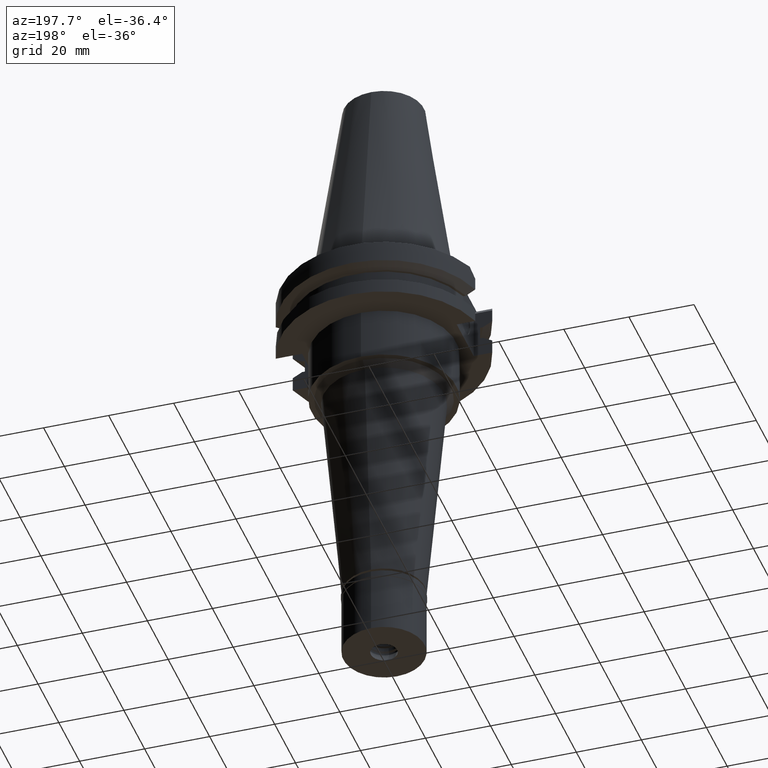
[diagram: clean part render]
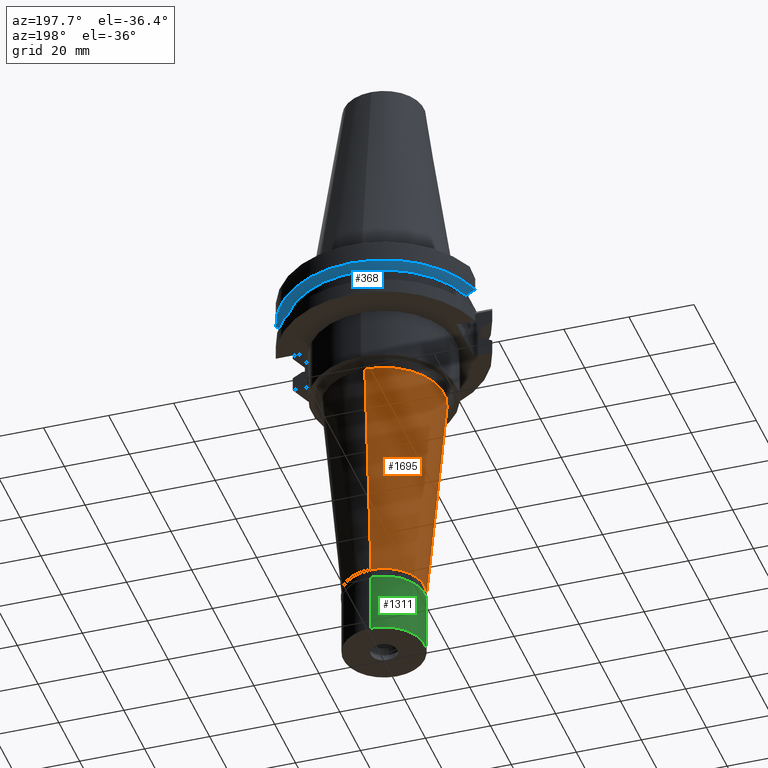
[diagram: same view with three faces highlighted in distinct colors, each labeled with its STEP entity id]
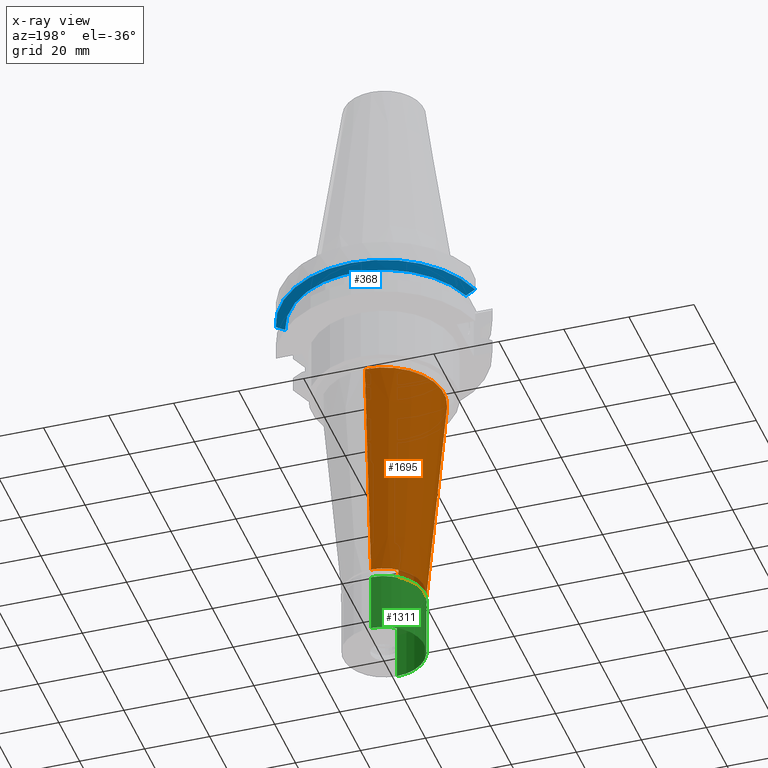
[diagram: x-ray of the same camera — body ghosted, the three highlighted faces saturated]
A machine part, auxiliary view with three faces highlighted in distinct colors.
The next image is the same camera in x-ray (body ghosted, the three faces saturated) — at least one of them is partly hidden behind the body in this view.
Their STEP definitions:

[orange] entity #1695 — the highlighted conical surface has half-angle 5 deg.
#9 = CONICAL_SURFACE ( 'NONE', #2849, 15.50523559212000002, 0.08726646259969973729 ) ;
#115 = DIRECTION ( 'NONE',  ( 0.0000000000000000000, 0.08715574274764407992, -0.9961946980917467664 ) ) ;
#285 = FACE_OUTER_BOUND ( 'NONE', #1817, .T. ) ;
#340 = CARTESIAN_POINT ( 'NONE',  ( 0.0000000000000000000, 18.51047118422999915, -37.00000000000000000 ) ) ;
#359 = ORIENTED_EDGE ( 'NONE', *, *, #1542, .T. ) ;
#388 = CARTESIAN_POINT ( 'NONE',  ( 0.0000000000000000000, -18.51047118422999915, -37.00000000000000000 ) ) ;
#406 = CARTESIAN_POINT ( 'NONE',  ( 0.0000000000000000000, -12.50000000000000000, -105.7000000000000028 ) ) ;
#423 = DIRECTION ( 'NONE',  ( 0.0000000000000000000, 1.000000000000000000, 0.0000000000000000000 ) ) ;
#504 = ORIENTED_EDGE ( 'NONE', *, *, #2035, .T. ) ;
#564 = CARTESIAN_POINT ( 'NONE',  ( 0.0000000000000000000, 0.0000000000000000000, -71.34999999999999432 ) ) ;
#752 = CARTESIAN_POINT ( 'NONE',  ( 0.0000000000000000000, 18.51047118422999915, -37.00000000000000000 ) ) ;
#798 = DIRECTION ( 'NONE',  ( 0.0000000000000000000, 1.000000000000000000, 0.0000000000000000000 ) ) ;
#939 = EDGE_CURVE ( 'NONE', #1962, #1413, #2685, .T. ) ;
#963 = VERTEX_POINT ( 'NONE', #752 ) ;
#999 = DIRECTION ( 'NONE',  ( 0.0000000000000000000, 0.0000000000000000000, -1.000000000000000000 ) ) ;
#1044 = AXIS2_PLACEMENT_3D ( 'NONE', #1997, #1707, #423 ) ;
#1052 = DIRECTION ( 'NONE',  ( 0.0000000000000000000, 0.0000000000000000000, 1.000000000000000000 ) ) ;
#1329 = EDGE_CURVE ( 'NONE', #2793, #1413, #2725, .T. ) ;
#1381 = DIRECTION ( 'NONE',  ( 0.0000000000000000000, -0.08715574274764407992, -0.9961946980917467664 ) ) ;
#1413 = VERTEX_POINT ( 'NONE', #406 ) ;
#1542 = EDGE_CURVE ( 'NONE', #2793, #963, #2513, .T. ) ;
#1695 = ADVANCED_FACE ( 'NONE', ( #285 ), #9, .T. ) ;
#1707 = DIRECTION ( 'NONE',  ( 0.0000000000000000000, 0.0000000000000000000, 1.000000000000000000 ) ) ;
#1817 = EDGE_LOOP ( 'NONE', ( #3050, #2728, #359, #504 ) ) ;
#1898 = LINE ( 'NONE', #340, #2145 ) ;
#1962 = VERTEX_POINT ( 'NONE', #2177 ) ;
#1997 = CARTESIAN_POINT ( 'NONE',  ( 0.0000000000000000000, 0.0000000000000000000, -105.7000000000000028 ) ) ;
#2035 = EDGE_CURVE ( 'NONE', #963, #1962, #1898, .T. ) ;
#2145 = VECTOR ( 'NONE', #1381, 1000.000000000000114 ) ;
#2177 = CARTESIAN_POINT ( 'NONE',  ( 0.0000000000000000000, 12.50000000000000000, -105.7000000000000028 ) ) ;
#2513 = CIRCLE ( 'NONE', #3276, 18.51047118422999915 ) ;
#2628 = VECTOR ( 'NONE', #115, 1000.000000000000114 ) ;
#2685 = CIRCLE ( 'NONE', #1044, 12.50000000000000000 ) ;
#2725 = LINE ( 'NONE', #388, #2628 ) ;
#2728 = ORIENTED_EDGE ( 'NONE', *, *, #1329, .F. ) ;
#2793 = VERTEX_POINT ( 'NONE', #2838 ) ;
#2838 = CARTESIAN_POINT ( 'NONE',  ( 0.0000000000000000000, -18.51047118422999915, -37.00000000000000000 ) ) ;
#2846 = DIRECTION ( 'NONE',  ( 0.0000000000000000000, -1.000000000000000000, 0.0000000000000000000 ) ) ;
#2849 = AXIS2_PLACEMENT_3D ( 'NONE', #564, #1052, #798 ) ;
#3050 = ORIENTED_EDGE ( 'NONE', *, *, #939, .T. ) ;
#3276 = AXIS2_PLACEMENT_3D ( 'NONE', #3335, #999, #2846 ) ;
#3335 = CARTESIAN_POINT ( 'NONE',  ( 0.0000000000000000000, 0.0000000000000000000, -37.00000000000000000 ) ) ;

[blue] entity #368 — the highlighted conical surface has half-angle 60 deg.
#27 = CARTESIAN_POINT ( 'NONE',  ( -27.79398348482000003, 8.190000189175000500, -9.210000000000999165 ) ) ;
#35 = ORIENTED_EDGE ( 'NONE', *, *, #1899, .T. ) ;
#121 = AXIS2_PLACEMENT_3D ( 'NONE', #1637, #1671, #630 ) ;
#263 = DIRECTION ( 'NONE',  ( 0.9661575315241073270, 0.2579527559055020958, 0.0000000000000000000 ) ) ;
#355 = B_SPLINE_CURVE_WITH_KNOTS ( 'NONE', 3,
 ( #2311, #2055, #1303, #1577 ),
 .UNSPECIFIED., .F., .F.,
 ( 4, 4 ),
 ( 0.0000000000000000000, 1.000000000000000000 ),
 .UNSPECIFIED. ) ;
#368 = ADVANCED_FACE ( 'NONE', ( #427 ), #2839, .T. ) ;
#427 = FACE_OUTER_BOUND ( 'NONE', #2065, .T. ) ;
#441 = VERTEX_POINT ( 'NONE', #1546 ) ;
#449 = CIRCLE ( 'NONE', #121, 28.97553755052999946 ) ;
#630 = DIRECTION ( 'NONE',  ( 0.0000000000000000000, 1.000000000000000000, 0.0000000000000000000 ) ) ;
#652 = DIRECTION ( 'NONE',  ( 0.0000000000000000000, 1.000000000000000000, 0.0000000000000000000 ) ) ;
#715 = ORIENTED_EDGE ( 'NONE', *, *, #1666, .F. ) ;
#925 = EDGE_CURVE ( 'NONE', #1745, #1834, #1485, .T. ) ;
#950 = CARTESIAN_POINT ( 'NONE',  ( -27.79398348482000003, 8.190000189175000500, -9.210000000000999165 ) ) ;
#1303 = CARTESIAN_POINT ( 'NONE',  ( 28.71170969509163839, 8.189998730403164728, -8.701758253036681268 ) ) ;
#1370 = AXIS2_PLACEMENT_3D ( 'NONE', #1470, #2734, #652 ) ;
#1470 = CARTESIAN_POINT ( 'NONE',  ( 0.0000000000000000000, 1.121665249527999917E-14, -8.409081678974001051 ) ) ;
#1484 = CIRCLE ( 'NONE', #2574, 31.74999999999998579 ) ;
#1485 = B_SPLINE_CURVE_WITH_KNOTS ( 'NONE', 3,
 ( #950, #2749, #3268, #2763 ),
 .UNSPECIFIED., .F., .F.,
 ( 4, 4 ),
 ( 0.0000000000000000000, 1.000000000000000000 ),
 .UNSPECIFIED. ) ;
#1546 = CARTESIAN_POINT ( 'NONE',  ( 30.67550165918999738, 8.189999875296001264, -7.608164472358999397 ) ) ;
#1577 = CARTESIAN_POINT ( 'NONE',  ( 27.79399588427999745, 8.189999365899998551, -9.210000000000999165 ) ) ;
#1637 = CARTESIAN_POINT ( 'NONE',  ( 0.0000000000000000000, 1.121665249527999917E-14, -9.210000000002999343 ) ) ;
#1666 = EDGE_CURVE ( 'NONE', #441, #1834, #1484, .T. ) ;
#1671 = DIRECTION ( 'NONE',  ( 0.0000000000000000000, 0.0000000000000000000, 1.000000000000000000 ) ) ;
#1720 = ORIENTED_EDGE ( 'NONE', *, *, #925, .T. ) ;
#1745 = VERTEX_POINT ( 'NONE', #27 ) ;
#1834 = VERTEX_POINT ( 'NONE', #2918 ) ;
#1899 = EDGE_CURVE ( 'NONE', #2004, #1745, #449, .T. ) ;
#2004 = VERTEX_POINT ( 'NONE', #2988 ) ;
#2055 = CARTESIAN_POINT ( 'NONE',  ( 29.67220411597960350, 8.189999750685567292, -8.167814094916428402 ) ) ;
#2065 = EDGE_LOOP ( 'NONE', ( #2088, #35, #1720, #715 ) ) ;
#2088 = ORIENTED_EDGE ( 'NONE', *, *, #2855, .T. ) ;
#2311 = CARTESIAN_POINT ( 'NONE',  ( 30.67550165918999738, 8.189999875296001264, -7.608164472358999397 ) ) ;
#2574 = AXIS2_PLACEMENT_3D ( 'NONE', #2607, #2866, #263 ) ;
#2607 = CARTESIAN_POINT ( 'NONE',  ( 0.0000000000000000000, 1.121665249527999917E-14, -7.608163357944999206 ) ) ;
#2734 = DIRECTION ( 'NONE',  ( 0.0000000000000000000, 0.0000000000000000000, 1.000000000000000000 ) ) ;
#2749 = CARTESIAN_POINT ( 'NONE',  ( -28.71170642078588386, 8.190000378777559931, -8.701759819570268562 ) ) ;
#2763 = CARTESIAN_POINT ( 'NONE',  ( -30.67550146538999911, 8.190000601148000214, -7.608157985709000037 ) ) ;
#2839 = CONICAL_SURFACE ( 'NONE', #1370, 30.36276877526999840, 1.047197551196400456 ) ;
#2855 = EDGE_CURVE ( 'NONE', #441, #2004, #355, .T. ) ;
#2866 = DIRECTION ( 'NONE',  ( 0.0000000000000000000, 0.0000000000000000000, 1.000000000000000000 ) ) ;
#2918 = CARTESIAN_POINT ( 'NONE',  ( -30.67550146538999911, 8.190000601148000214, -7.608157985709000037 ) ) ;
#2988 = CARTESIAN_POINT ( 'NONE',  ( 27.79399588427999745, 8.189999365899998551, -9.210000000000999165 ) ) ;
#3268 = CARTESIAN_POINT ( 'NONE',  ( -29.67220490029862034, 8.190001201864017588, -8.167813437756086259 ) ) ;

[green] entity #1311 — the highlighted cylindrical surface (partial cylindrical patch) has radius 12.5 mm, axis along (0, 0, -1).
#15 = AXIS2_PLACEMENT_3D ( 'NONE', #2110, #523, #3110 ) ;
#187 = DIRECTION ( 'NONE',  ( 0.0000000000000000000, 0.0000000000000000000, -1.000000000000000000 ) ) ;
#211 = DIRECTION ( 'NONE',  ( 0.0000000000000000000, 0.0000000000000000000, -1.000000000000000000 ) ) ;
#499 = VERTEX_POINT ( 'NONE', #1510 ) ;
#502 = CARTESIAN_POINT ( 'NONE',  ( 0.0000000000000000000, 12.50000000000000000, -2.000000000000000000 ) ) ;
#523 = DIRECTION ( 'NONE',  ( 0.0000000000000000000, 0.0000000000000000000, 1.000000000000000000 ) ) ;
#617 = CYLINDRICAL_SURFACE ( 'NONE', #1596, 12.50000000000000000 ) ;
#646 = CARTESIAN_POINT ( 'NONE',  ( 0.0000000000000000000, 0.0000000000000000000, 0.0000000000000000000 ) ) ;
#719 = CIRCLE ( 'NONE', #3113, 12.50000000000000000 ) ;
#805 = LINE ( 'NONE', #502, #1277 ) ;
#1098 = EDGE_CURVE ( 'NONE', #499, #2887, #2779, .T. ) ;
#1215 = VERTEX_POINT ( 'NONE', #2425 ) ;
#1273 = CIRCLE ( 'NONE', #15, 12.50000000000000000 ) ;
#1277 = VECTOR ( 'NONE', #1547, 1000.000000000000000 ) ;
#1311 = ADVANCED_FACE ( 'NONE', ( #1399 ), #617, .T. ) ;
#1399 = FACE_OUTER_BOUND ( 'NONE', #3340, .T. ) ;
#1500 = DIRECTION ( 'NONE',  ( 0.0000000000000000000, -1.000000000000000000, 0.0000000000000000000 ) ) ;
#1510 = CARTESIAN_POINT ( 'NONE',  ( 0.0000000000000000000, -12.50000000000000000, -2.000000000000000000 ) ) ;
#1514 = EDGE_CURVE ( 'NONE', #499, #1215, #719, .T. ) ;
#1547 = DIRECTION ( 'NONE',  ( 0.0000000000000000000, 0.0000000000000000000, -1.000000000000000000 ) ) ;
#1569 = CARTESIAN_POINT ( 'NONE',  ( 0.0000000000000000000, 12.50000000000000000, -20.50000000000000000 ) ) ;
#1596 = AXIS2_PLACEMENT_3D ( 'NONE', #646, #2979, #2968 ) ;
#1626 = ORIENTED_EDGE ( 'NONE', *, *, #2314, .T. ) ;
#1672 = VERTEX_POINT ( 'NONE', #1569 ) ;
#2110 = CARTESIAN_POINT ( 'NONE',  ( 0.0000000000000000000, 0.0000000000000000000, -20.50000000000000000 ) ) ;
#2314 = EDGE_CURVE ( 'NONE', #1672, #2887, #1273, .T. ) ;
#2405 = ORIENTED_EDGE ( 'NONE', *, *, #1514, .T. ) ;
#2425 = CARTESIAN_POINT ( 'NONE',  ( 0.0000000000000000000, 12.50000000000000000, -2.000000000000000000 ) ) ;
#2549 = CARTESIAN_POINT ( 'NONE',  ( 0.0000000000000000000, 0.0000000000000000000, -2.000000000000000000 ) ) ;
#2594 = CARTESIAN_POINT ( 'NONE',  ( 0.0000000000000000000, -12.50000000000000000, -2.000000000000000000 ) ) ;
#2599 = CARTESIAN_POINT ( 'NONE',  ( 0.0000000000000000000, -12.50000000000000000, -20.50000000000000000 ) ) ;
#2779 = LINE ( 'NONE', #2594, #2954 ) ;
#2809 = EDGE_CURVE ( 'NONE', #1215, #1672, #805, .T. ) ;
#2887 = VERTEX_POINT ( 'NONE', #2599 ) ;
#2954 = VECTOR ( 'NONE', #187, 1000.000000000000000 ) ;
#2968 = DIRECTION ( 'NONE',  ( 0.0000000000000000000, -1.000000000000000000, 0.0000000000000000000 ) ) ;
#2979 = DIRECTION ( 'NONE',  ( 0.0000000000000000000, 0.0000000000000000000, -1.000000000000000000 ) ) ;
#3110 = DIRECTION ( 'NONE',  ( 0.0000000000000000000, 1.000000000000000000, 0.0000000000000000000 ) ) ;
#3113 = AXIS2_PLACEMENT_3D ( 'NONE', #2549, #211, #1500 ) ;
#3146 = ORIENTED_EDGE ( 'NONE', *, *, #2809, .T. ) ;
#3193 = ORIENTED_EDGE ( 'NONE', *, *, #1098, .F. ) ;
#3340 = EDGE_LOOP ( 'NONE', ( #1626, #3193, #2405, #3146 ) ) ;